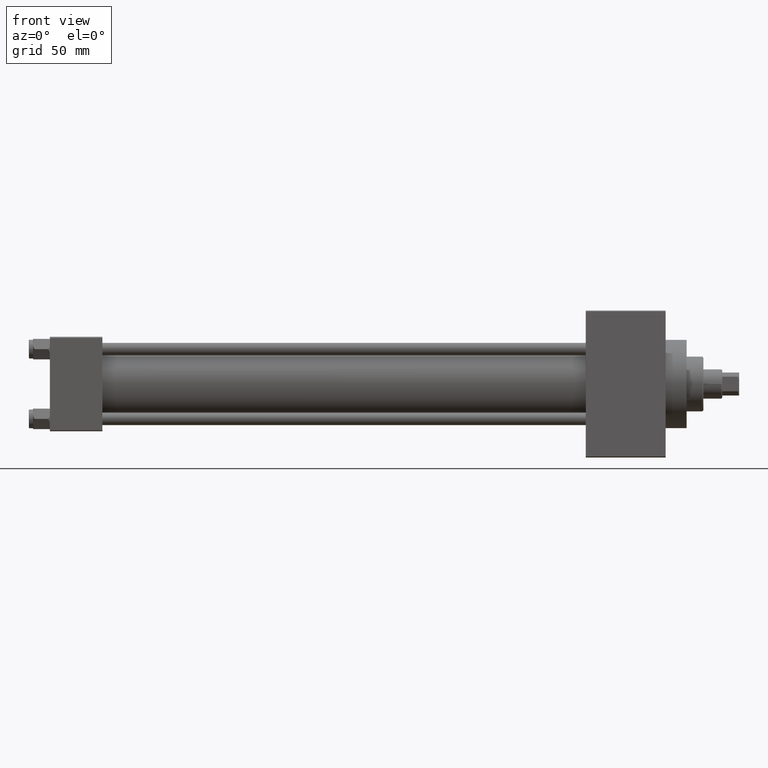
[diagram: clean part render]
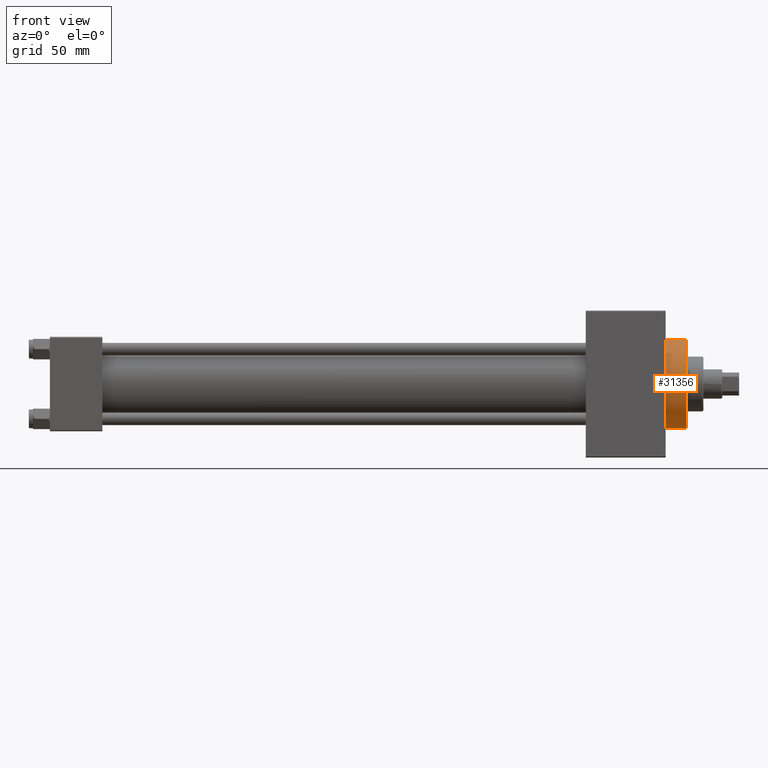
[diagram: same view with one face highlighted and labeled with its STEP entity id]
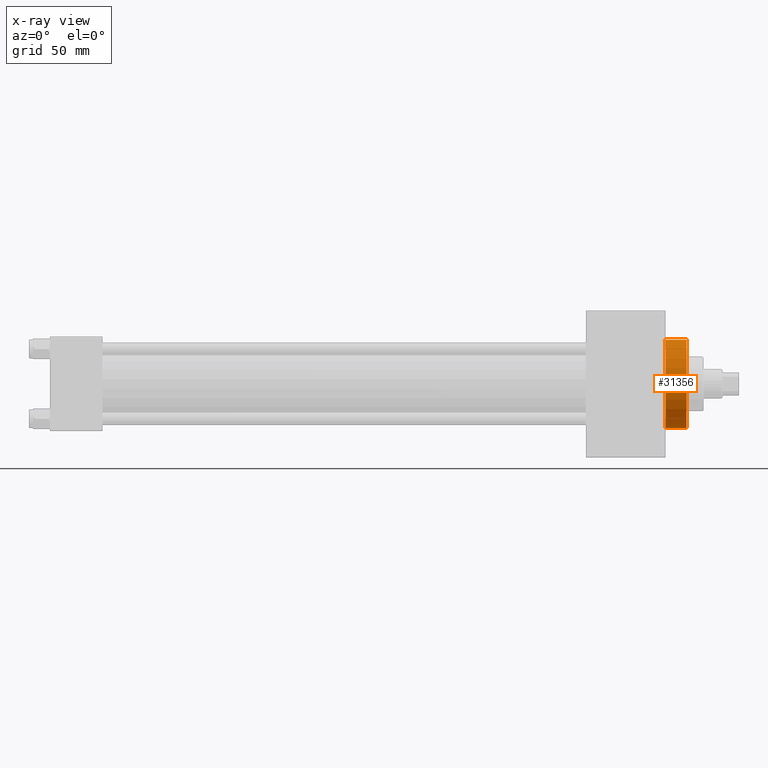
[diagram: x-ray of the same camera — body ghosted, the highlighted face saturated]
A machine part, front view. The second image highlights one B-rep face of the part: STEP entity #31356.
The next image is the same camera in x-ray: the body ghosted, the highlighted face saturated — about 0% of this face is hidden behind the body in this view.
In plain terms, the highlighted cylindrical surface (partial cylindrical patch) has radius 21 mm, axis along (-1, -0, -0).
Its self-contained STEP definition (entity closure, byte-faithful):
#66 = DIRECTION ( 'NONE',  ( 1.000000000000000000, 0.000000000000000000, 0.000000000000000000 ) ) ;
#686 = CARTESIAN_POINT ( 'NONE',  ( 293.0000000000000000, 0.000000000000000000, 21.00000000000000000 ) ) ;
#2046 = CARTESIAN_POINT ( 'NONE',  ( 303.0000000000000000, 0.000000000000000000, 0.000000000000000000 ) ) ;
#5174 = VERTEX_POINT ( 'NONE', #43064 ) ;
#5297 = CIRCLE ( 'NONE', #21296, 21.00000000000000000 ) ;
#5837 = FACE_OUTER_BOUND ( 'NONE', #25689, .T. ) ;
#7438 = CARTESIAN_POINT ( 'NONE',  ( 293.0000000000000000, 0.000000000000000000, 0.000000000000000000 ) ) ;
#7960 = EDGE_CURVE ( 'NONE', #45262, #15080, #20914, .T. ) ;
#8460 = DIRECTION ( 'NONE',  ( -1.000000000000000000, -0.000000000000000000, -0.000000000000000000 ) ) ;
#8944 = CYLINDRICAL_SURFACE ( 'NONE', #43230, 21.00000000000000000 ) ;
#13013 = DIRECTION ( 'NONE',  ( 1.000000000000000000, 0.000000000000000000, 0.000000000000000000 ) ) ;
#15080 = VERTEX_POINT ( 'NONE', #19146 ) ;
#16096 = VERTEX_POINT ( 'NONE', #27789 ) ;
#16290 = ORIENTED_EDGE ( 'NONE', *, *, #7960, .T. ) ;
#16829 = DIRECTION ( 'NONE',  ( 0.000000000000000000, 0.000000000000000000, 1.000000000000000000 ) ) ;
#19003 = CARTESIAN_POINT ( 'NONE',  ( 303.0000000000000000, 0.000000000000000000, 21.00000000000000000 ) ) ;
#19146 = CARTESIAN_POINT ( 'NONE',  ( 293.0000000000000000, 2.571758278209441661E-15, -21.00000000000000000 ) ) ;
#20405 = CARTESIAN_POINT ( 'NONE',  ( 303.0000000000000000, 0.000000000000000000, 0.000000000000000000 ) ) ;
#20481 = EDGE_CURVE ( 'NONE', #5174, #45262, #30432, .T. ) ;
#20914 = CIRCLE ( 'NONE', #42248, 21.00000000000000000 ) ;
#21296 = AXIS2_PLACEMENT_3D ( 'NONE', #2046, #13013, #41616 ) ;
#25601 = ORIENTED_EDGE ( 'NONE', *, *, #35366, .F. ) ;
#25689 = EDGE_LOOP ( 'NONE', ( #32924, #25601, #38770, #16290 ) ) ;
#27789 = CARTESIAN_POINT ( 'NONE',  ( 303.0000000000000000, 2.571758278209441661E-15, -21.00000000000000000 ) ) ;
#29409 = DIRECTION ( 'NONE',  ( -1.000000000000000000, -0.000000000000000000, -0.000000000000000000 ) ) ;
#29875 = LINE ( 'NONE', #44406, #35204 ) ;
#30432 = LINE ( 'NONE', #19003, #34890 ) ;
#31356 = ADVANCED_FACE ( 'NONE', ( #5837 ), #8944, .T. ) ;
#32924 = ORIENTED_EDGE ( 'NONE', *, *, #42060, .F. ) ;
#34890 = VECTOR ( 'NONE', #44490, 1000.000000000000000 ) ;
#35204 = VECTOR ( 'NONE', #29409, 1000.000000000000000 ) ;
#35366 = EDGE_CURVE ( 'NONE', #5174, #16096, #5297, .T. ) ;
#38770 = ORIENTED_EDGE ( 'NONE', *, *, #20481, .T. ) ;
#41616 = DIRECTION ( 'NONE',  ( 0.000000000000000000, 0.000000000000000000, -1.000000000000000000 ) ) ;
#42060 = EDGE_CURVE ( 'NONE', #16096, #15080, #29875, .T. ) ;
#42248 = AXIS2_PLACEMENT_3D ( 'NONE', #7438, #66, #43682 ) ;
#43064 = CARTESIAN_POINT ( 'NONE',  ( 303.0000000000000000, 0.000000000000000000, 21.00000000000000000 ) ) ;
#43230 = AXIS2_PLACEMENT_3D ( 'NONE', #20405, #8460, #16829 ) ;
#43682 = DIRECTION ( 'NONE',  ( 0.000000000000000000, 0.000000000000000000, -1.000000000000000000 ) ) ;
#44406 = CARTESIAN_POINT ( 'NONE',  ( 303.0000000000000000, 2.571758278209441661E-15, -21.00000000000000000 ) ) ;
#44490 = DIRECTION ( 'NONE',  ( -1.000000000000000000, -0.000000000000000000, -0.000000000000000000 ) ) ;
#45262 = VERTEX_POINT ( 'NONE', #686 ) ;